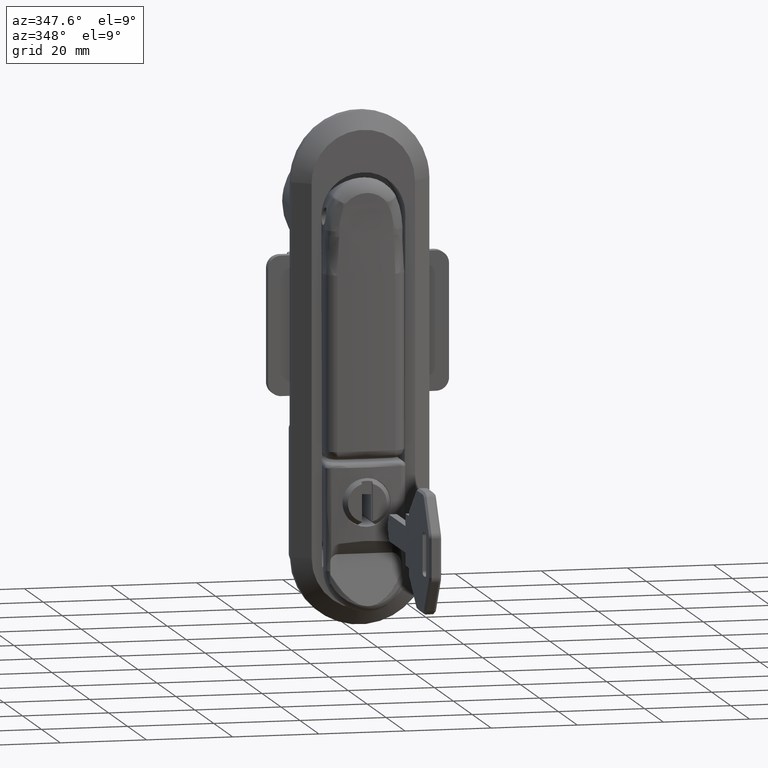
[diagram: clean part render]
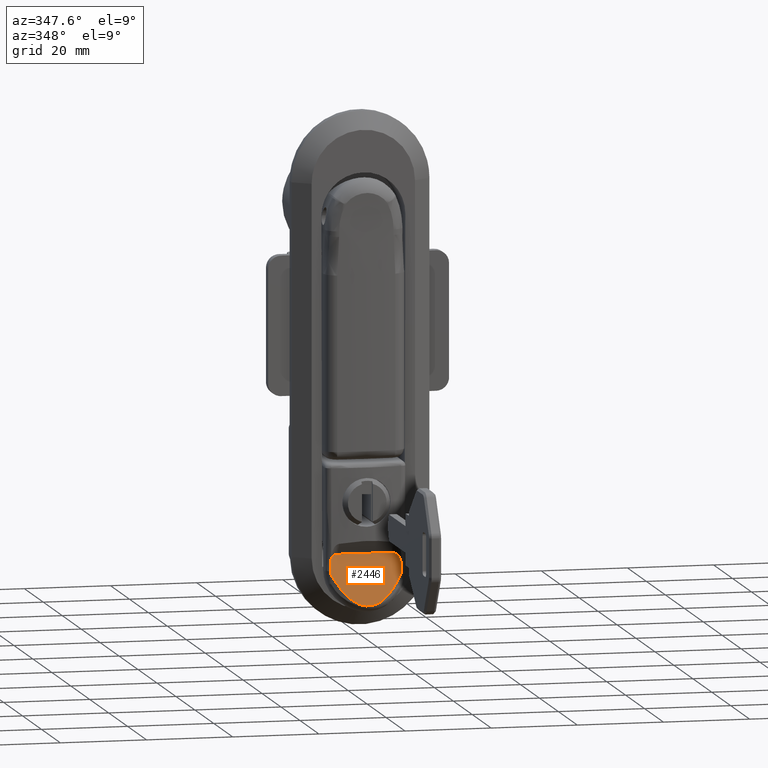
[diagram: same view with one face highlighted and labeled with its STEP entity id]
A machine part, auxiliary view. The second image highlights one B-rep face of the part: STEP entity #2446.
In plain terms, the highlighted face is a freeform B-spline surface patch.
Its self-contained STEP definition (entity closure, byte-faithful):
#366=CARTESIAN_POINT('',(-7.992913474151290,8.133312327777130,-131.779626191472000));
#367=VERTEX_POINT('',#366);
#381=CARTESIAN_POINT('',(-7.904362365787961,8.300000000764200,-131.525041754665410));
#382=VERTEX_POINT('',#381);
#383=CARTESIAN_POINT('',(-7.904362365787957,8.300000000764200,-131.525041754665610));
#384=CARTESIAN_POINT('',(-7.941460983503269,8.212843490739623,-131.631700280706950));
#385=CARTESIAN_POINT('',(-7.992913474151283,8.133312327777130,-131.779626191472090));
#393=(BOUNDED_CURVE()B_SPLINE_CURVE(2,(#383,#384,#385),.UNSPECIFIED.,.F.,.U.)CURVE()GEOMETRIC_REPRESENTATION_ITEM()QUASI_UNIFORM_CURVE()RATIONAL_B_SPLINE_CURVE((1.0,0.996312822286073,1.0))REPRESENTATION_ITEM(''));
#394=EDGE_CURVE('',#382,#367,#393,.T.);
#481=CARTESIAN_POINT('',(-10.381613519299981,0.619867892472742,-138.647138828338200));
#482=VERTEX_POINT('',#481);
#496=CARTESIAN_POINT('',(-7.992913474151289,8.133312327777139,-131.779626191471890));
#497=CARTESIAN_POINT('',(-10.212454605002891,4.702522386289147,-138.160806949234000));
#498=CARTESIAN_POINT('',(-10.381613519299981,0.619867892472742,-138.647138828338200));
#506=(BOUNDED_CURVE()B_SPLINE_CURVE(2,(#496,#497,#498),.UNSPECIFIED.,.F.,.U.)CURVE()GEOMETRIC_REPRESENTATION_ITEM()QUASI_UNIFORM_CURVE()RATIONAL_B_SPLINE_CURVE((1.0,0.964722708553019,1.0))REPRESENTATION_ITEM(''));
#507=EDGE_CURVE('',#367,#482,#506,.T.);
#576=CARTESIAN_POINT('',(-10.381613519301020,-0.619867892414010,-138.647138828341210));
#577=VERTEX_POINT('',#576);
#591=CARTESIAN_POINT('',(-10.381613519299981,0.619867892472742,-138.647138828338200));
#592=CARTESIAN_POINT('',(-10.390174630692250,0.413245261658350,-138.671752023616310));
#593=CARTESIAN_POINT('',(-10.398527620119060,2.949881E-011,-138.695766868243200));
#594=CARTESIAN_POINT('',(-10.390174630692950,-0.413245261599486,-138.671752023618410));
#595=CARTESIAN_POINT('',(-10.381613519301020,-0.619867892414011,-138.647138828341210));
#596=B_SPLINE_CURVE_WITH_KNOTS('',3,(#591,#592,#593,#594,#595),.UNSPECIFIED.,.F.,.U.,(4,1,4),(0.0,0.500000000000000,1.0),.UNSPECIFIED.);
#597=EDGE_CURVE('',#482,#577,#596,.T.);
#674=CARTESIAN_POINT('',(-7.992913474175290,-8.133312327706660,-131.779626191541010));
#675=VERTEX_POINT('',#674);
#689=CARTESIAN_POINT('',(-10.381613519301030,-0.619867892414010,-138.647138828341410));
#690=CARTESIAN_POINT('',(-10.212454605011574,-4.702522386220137,-138.160806949259010));
#691=CARTESIAN_POINT('',(-7.992913474175309,-8.133312327706644,-131.779626191541010));
#699=(BOUNDED_CURVE()B_SPLINE_CURVE(2,(#689,#690,#691),.UNSPECIFIED.,.F.,.U.)CURVE()GEOMETRIC_REPRESENTATION_ITEM()QUASI_UNIFORM_CURVE()RATIONAL_B_SPLINE_CURVE((1.0,0.964722708553176,1.0))REPRESENTATION_ITEM(''));
#700=EDGE_CURVE('',#577,#675,#699,.T.);
#757=CARTESIAN_POINT('',(-7.904362366433150,-8.299999999235800,-131.525041756520410));
#758=VERTEX_POINT('',#757);
#768=CARTESIAN_POINT('',(-7.992913474175255,-8.133312327706713,-131.779626191541010));
#769=CARTESIAN_POINT('',(-7.941460983961078,-8.212843489999131,-131.631700282023130));
#770=CARTESIAN_POINT('',(-7.904362366433097,-8.299999999235881,-131.525041756520410));
#778=(BOUNDED_CURVE()B_SPLINE_CURVE(2,(#768,#769,#770),.UNSPECIFIED.,.F.,.U.)CURVE()GEOMETRIC_REPRESENTATION_ITEM()QUASI_UNIFORM_CURVE()RATIONAL_B_SPLINE_CURVE((1.0,0.996312822347882,1.0))REPRESENTATION_ITEM(''));
#779=EDGE_CURVE('',#675,#758,#778,.T.);
#812=CARTESIAN_POINT('',(-6.404961317777630,6.300000000764250,-127.214263737201610));
#813=VERTEX_POINT('',#812);
#814=CARTESIAN_POINT('',(-7.231175604527800,8.300000000764200,-129.589629814051590));
#815=VERTEX_POINT('',#814);
#816=CARTESIAN_POINT('',(-6.404961317777630,6.300000000764250,-127.214263737201610));
#817=CARTESIAN_POINT('',(-6.404961328044160,8.299999941159555,-127.214263766717820));
#818=CARTESIAN_POINT('',(-7.231175604527800,8.300000000764200,-129.589629814051590));
#826=(BOUNDED_CURVE()B_SPLINE_CURVE(2,(#816,#817,#818),.UNSPECIFIED.,.F.,.U.)CURVE()GEOMETRIC_REPRESENTATION_ITEM()QUASI_UNIFORM_CURVE()RATIONAL_B_SPLINE_CURVE((1.0,0.707106791723260,1.0))REPRESENTATION_ITEM(''));
#827=EDGE_CURVE('',#813,#815,#826,.T.);
#898=CARTESIAN_POINT('',(-7.231175604527800,-8.299999999235800,-129.589629814051590));
#899=VERTEX_POINT('',#898);
#900=CARTESIAN_POINT('',(-6.404961317777630,-6.299999999235810,-127.214263737201610));
#901=VERTEX_POINT('',#900);
#902=CARTESIAN_POINT('',(-7.231175604527800,-8.299999999235800,-129.589629814051590));
#903=CARTESIAN_POINT('',(-6.888946507952285,-8.300000087393356,-128.605721160384970));
#904=CARTESIAN_POINT('',(-6.646953917998217,-7.714213636856078,-127.909992463551400));
#905=CARTESIAN_POINT('',(-6.404961328044150,-7.128427186318803,-127.214263766717860));
#906=CARTESIAN_POINT('',(-6.404961317777630,-6.299999999235810,-127.214263737201610));
#914=(BOUNDED_CURVE()B_SPLINE_CURVE(2,(#902,#903,#904,#905,#906),.UNSPECIFIED.,.F.,.U.)B_SPLINE_CURVE_WITH_KNOTS((3,2,3),(0.0,0.500000000000000,1.0),.UNSPECIFIED.)CURVE()GEOMETRIC_REPRESENTATION_ITEM()RATIONAL_B_SPLINE_CURVE((1.0,0.923879522330419,1.0,0.923879522330419,1.0))REPRESENTATION_ITEM(''));
#915=EDGE_CURVE('',#899,#901,#914,.T.);
#2370=CARTESIAN_POINT('',(-7.904362365787961,8.300000000764200,-131.525041754665410));
#2371=CARTESIAN_POINT('',(-7.231175604527800,8.300000000764200,-129.589629814051590));
#2372=QUASI_UNIFORM_CURVE('',1,(#2370,#2371),.UNSPECIFIED.,.F.,.U.);
#2373=EDGE_CURVE('',#382,#815,#2372,.T.);
#2404=CARTESIAN_POINT('',(-7.904362366433150,-8.299999999235800,-131.525041756520410));
#2405=CARTESIAN_POINT('',(-7.231175604527800,-8.299999999235800,-129.589629814051590));
#2406=QUASI_UNIFORM_CURVE('',1,(#2404,#2405),.UNSPECIFIED.,.F.,.U.);
#2407=EDGE_CURVE('',#758,#899,#2406,.T.);
#2425=CARTESIAN_POINT('',(-10.593621850105849,-9.129170278719625,-139.256662780032090));
#2426=CARTESIAN_POINT('',(-6.205691163764378,-9.129170278719625,-126.641362043824300));
#2427=CARTESIAN_POINT('',(-10.593621850105849,9.129170428663588,-139.256662780032090));
#2428=CARTESIAN_POINT('',(-6.205691163764378,9.129170428663587,-126.641362043824300));
#2429=B_SPLINE_SURFACE_WITH_KNOTS('',1,1,((#2425,#2427),(#2426,#2428)),.UNSPECIFIED.,.F.,.F.,.U.,(2,2),(2,2),(0.0,13.356636866109049),(0.0,18.258340707383208),.UNSPECIFIED.);
#2430=ORIENTED_EDGE('',*,*,#700,.T.);
#2431=ORIENTED_EDGE('',*,*,#779,.T.);
#2432=ORIENTED_EDGE('',*,*,#2407,.T.);
#2433=ORIENTED_EDGE('',*,*,#915,.T.);
#2434=CARTESIAN_POINT('',(-6.404961317777630,-6.299999999235810,-127.214263737201610));
#2435=CARTESIAN_POINT('',(-6.404961317777630,6.300000000764250,-127.214263737201610));
#2436=QUASI_UNIFORM_CURVE('',1,(#2434,#2435),.UNSPECIFIED.,.F.,.U.);
#2437=EDGE_CURVE('',#901,#813,#2436,.T.);
#2438=ORIENTED_EDGE('',*,*,#2437,.T.);
#2439=ORIENTED_EDGE('',*,*,#827,.T.);
#2440=ORIENTED_EDGE('',*,*,#2373,.F.);
#2441=ORIENTED_EDGE('',*,*,#394,.T.);
#2442=ORIENTED_EDGE('',*,*,#507,.T.);
#2443=ORIENTED_EDGE('',*,*,#597,.T.);
#2444=EDGE_LOOP('',(#2430,#2431,#2432,#2433,#2438,#2439,#2440,#2441,#2442,#2443));
#2445=FACE_OUTER_BOUND('',#2444,.T.);
#2446=ADVANCED_FACE('',(#2445),#2429,.T.);